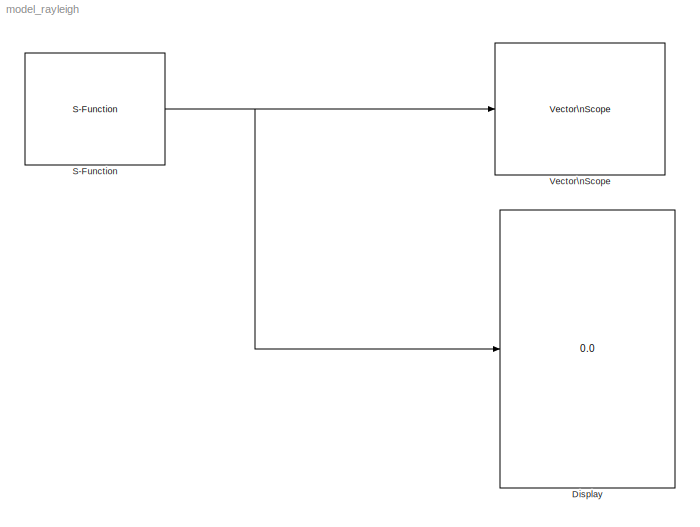
MODEL model_rayleigh
KIND model
BLOCK [Display] Display
  Decimation = 1
  Ports = [1]
BLOCK [S-Function] S-Function
  FunctionName = singlerayleigh
  Ports = [0, 1]
BLOCK [Reference] Vector\nScope  REF=dspsnks4/Vector\nScope
  AxisGrid = on
  AxisLegend = off
  AxisProperties = off
  AxisZoom = off
  DisplayProperties = off
  Domain = Time
  FigPos = [1 25 1440 832]
  FrameNumber = on
  HorizSpan = 1
  InheritXIncr = on
  LineColors = [0 1 0]
  LineMarkers = None
  LineProperties = off
  LineStyles = -
  Memory = off
  OpenScopeAtSimStart = on
  OpenScopeImmediately = off
  Ports = [1]
  ScopeProperties = on
  ShowPortLabels = off
  SourceBlock = dspsnks4/Vector\nScope
  SourceType = Vector Scope
  XIncr = 1
  XLabel = Time
  XRange = [0...Fs/2]
  XUnits = Hertz
  YLabel = Amplitude
  YMax = -6.13984187967895
  YMin = -27.39342836602
  YUnits = dB
NET S-Function:1 -> Display:1, Vector\nScope:1
note: NET lines group one-source signal fan-out (src -> all destinations, sorted); 1:1 wires keep LINE
